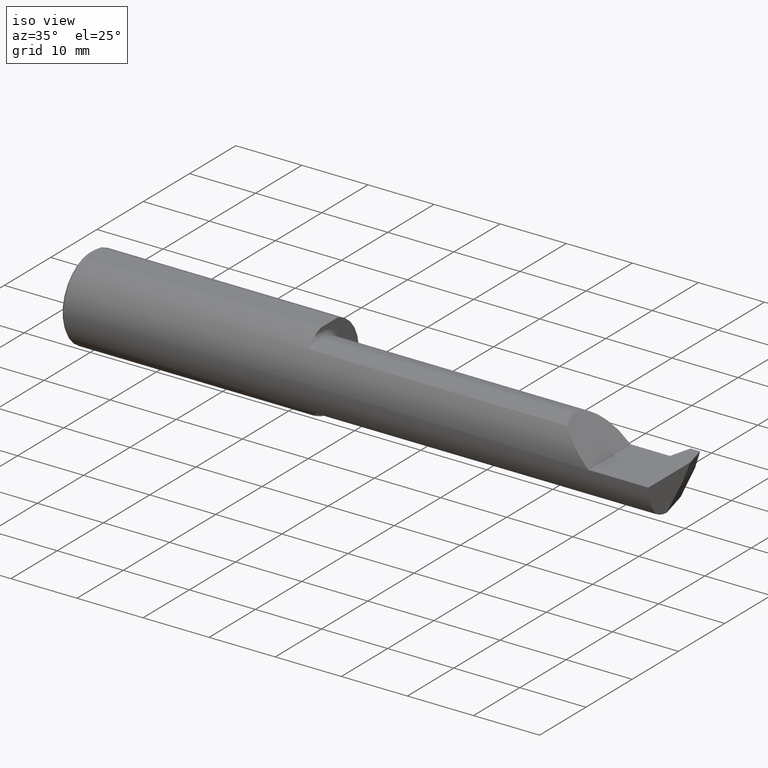
[diagram: clean part render]
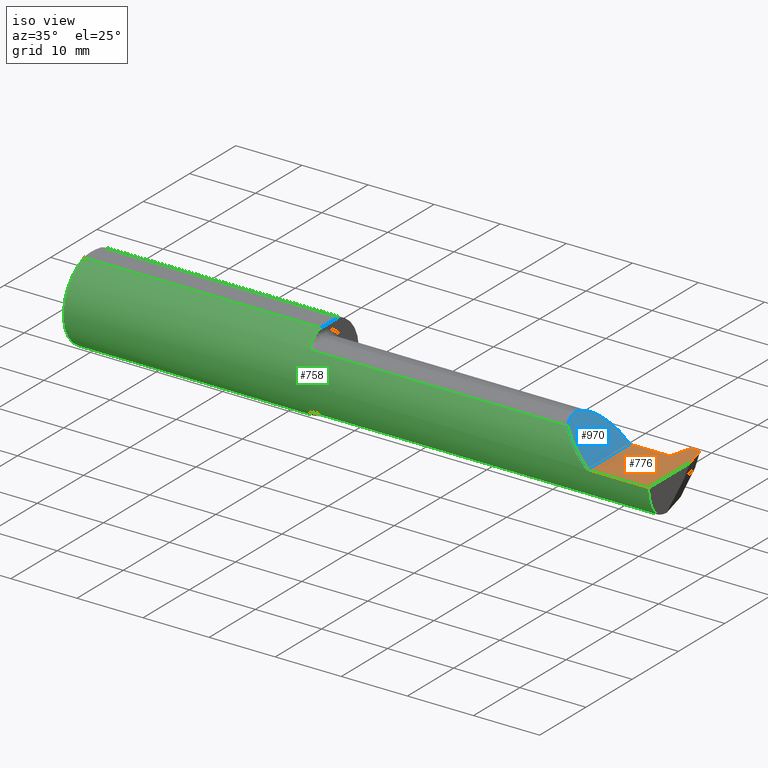
[diagram: same view with three faces highlighted in distinct colors, each labeled with its STEP entity id]
A machine part, iso view with three faces highlighted in distinct colors.
Their STEP definitions:

[orange] entity #776 — the highlighted planar face has unit normal (-0, 0, -1).
#16 = DIRECTION ( 'NONE',  ( 1.000000000000000000, -8.537024980200913523E-16, -0.000000000000000000 ) ) ;
#35 = DIRECTION ( 'NONE',  ( -0.000000000000000000, 1.000000000000000000, -0.000000000000000000 ) ) ;
#36 = CARTESIAN_POINT ( 'NONE',  ( 3.500000000000000000, -0.2498499999999999055, -6.123031769111886291E-17 ) ) ;
#40 = LINE ( 'NONE', #815, #230 ) ;
#60 = VERTEX_POINT ( 'NONE', #695 ) ;
#89 = LINE ( 'NONE', #620, #351 ) ;
#96 = DIRECTION ( 'NONE',  ( 0.2503800040544125749, -0.9681476403781151818, 0.000000000000000000 ) ) ;
#101 = VERTEX_POINT ( 'NONE', #236 ) ;
#131 = EDGE_LOOP ( 'NONE', ( #871, #218, #277, #349, #896, #752, #512, #810 ) ) ;
#134 = VECTOR ( 'NONE', #789, 39.37007874015748143 ) ;
#136 = VERTEX_POINT ( 'NONE', #36 ) ;
#154 = LINE ( 'NONE', #892, #310 ) ;
#175 = VERTEX_POINT ( 'NONE', #718 ) ;
#178 = EDGE_CURVE ( 'NONE', #786, #814, #794, .T. ) ;
#209 = CARTESIAN_POINT ( 'NONE',  ( 3.139999999999999680, 0.2999999999999999889, -6.123031769111886291E-17 ) ) ;
#218 = ORIENTED_EDGE ( 'NONE', *, *, #868, .F. ) ;
#230 = VECTOR ( 'NONE', #291, 39.37007874015748143 ) ;
#236 = CARTESIAN_POINT ( 'NONE',  ( 3.376000360214735707, 0.1101499999999999563, 0.000000000000000000 ) ) ;
#239 = CARTESIAN_POINT ( 'NONE',  ( 3.409103411012277540, 0.2381499999999572847, -6.123031769111886291E-17 ) ) ;
#256 = CARTESIAN_POINT ( 'NONE',  ( 3.500000000000000000, 0.2999999999999999889, -6.123031769111886291E-17 ) ) ;
#275 = VECTOR ( 'NONE', #16, 39.37007874015748143 ) ;
#277 = ORIENTED_EDGE ( 'NONE', *, *, #422, .F. ) ;
#285 = DIRECTION ( 'NONE',  ( 1.000000000000000000, 0.000000000000000000, 0.000000000000000000 ) ) ;
#291 = DIRECTION ( 'NONE',  ( -1.000000000000000000, -0.000000000000000000, -0.000000000000000000 ) ) ;
#310 = VECTOR ( 'NONE', #285, 39.37007874015748143 ) ;
#313 = AXIS2_PLACEMENT_3D ( 'NONE', #209, #960, #362 ) ;
#317 = EDGE_CURVE ( 'NONE', #175, #343, #154, .T. ) ;
#343 = VERTEX_POINT ( 'NONE', #979 ) ;
#349 = ORIENTED_EDGE ( 'NONE', *, *, #317, .F. ) ;
#351 = VECTOR ( 'NONE', #478, 39.37007874015748143 ) ;
#362 = DIRECTION ( 'NONE',  ( -1.000000000000000000, 0.000000000000000000, 0.000000000000000000 ) ) ;
#368 = VECTOR ( 'NONE', #96, 39.37007874015748854 ) ;
#389 = CARTESIAN_POINT ( 'NONE',  ( 3.139999999999999680, -0.2498499999999999610, -6.123031769111885058E-17 ) ) ;
#390 = EDGE_CURVE ( 'NONE', #136, #817, #40, .T. ) ;
#421 = VECTOR ( 'NONE', #35, 39.37007874015748143 ) ;
#422 = EDGE_CURVE ( 'NONE', #343, #101, #624, .T. ) ;
#478 = DIRECTION ( 'NONE',  ( 0.2503800040544344463, 0.9681476403781096307, -0.000000000000000000 ) ) ;
#497 = EDGE_CURVE ( 'NONE', #786, #60, #836, .T. ) ;
#512 = ORIENTED_EDGE ( 'NONE', *, *, #946, .T. ) ;
#522 = PLANE ( 'NONE',  #313 ) ;
#547 = VECTOR ( 'NONE', #627, 39.37007874015748143 ) ;
#568 = LINE ( 'NONE', #865, #421 ) ;
#620 = CARTESIAN_POINT ( 'NONE',  ( 3.412206822024559383, 0.2501499999999999835, 0.000000000000000000 ) ) ;
#624 = LINE ( 'NONE', #932, #275 ) ;
#627 = DIRECTION ( 'NONE',  ( -1.000000000000000000, 4.626059459033357945E-14, 0.000000000000000000 ) ) ;
#663 = EDGE_CURVE ( 'NONE', #817, #175, #568, .T. ) ;
#695 = CARTESIAN_POINT ( 'NONE',  ( 3.500000000000000000, 0.1070816154887281602, 0.000000000000000000 ) ) ;
#709 = LINE ( 'NONE', #256, #134 ) ;
#713 = CARTESIAN_POINT ( 'NONE',  ( 3.139999999999997016, 0.2381499999999697470, -6.123031769111886291E-17 ) ) ;
#718 = CARTESIAN_POINT ( 'NONE',  ( 3.139999999999999680, 0.1101499999999999563, -6.123031769111885058E-17 ) ) ;
#732 = CARTESIAN_POINT ( 'NONE',  ( 3.466103411012281921, 0.2381499999999546757, 0.000000000000000000 ) ) ;
#752 = ORIENTED_EDGE ( 'NONE', *, *, #390, .F. ) ;
#776 = ADVANCED_FACE ( 'NONE', ( #888 ), #522, .F. ) ;
#778 = CARTESIAN_POINT ( 'NONE',  ( 3.462999999999999634, 0.2501499999999999835, 0.000000000000000000 ) ) ;
#786 = VERTEX_POINT ( 'NONE', #732 ) ;
#789 = DIRECTION ( 'NONE',  ( -0.000000000000000000, 1.000000000000000000, -0.000000000000000000 ) ) ;
#794 = LINE ( 'NONE', #713, #547 ) ;
#810 = ORIENTED_EDGE ( 'NONE', *, *, #497, .F. ) ;
#814 = VERTEX_POINT ( 'NONE', #239 ) ;
#815 = CARTESIAN_POINT ( 'NONE',  ( 3.500000000000000000, -0.2498499999999999888, -6.123031769111886291E-17 ) ) ;
#817 = VERTEX_POINT ( 'NONE', #389 ) ;
#836 = LINE ( 'NONE', #778, #368 ) ;
#865 = CARTESIAN_POINT ( 'NONE',  ( 3.139999999999999680, 0.2999999999999999889, -6.123031769111886291E-17 ) ) ;
#868 = EDGE_CURVE ( 'NONE', #101, #814, #89, .T. ) ;
#871 = ORIENTED_EDGE ( 'NONE', *, *, #178, .T. ) ;
#888 = FACE_OUTER_BOUND ( 'NONE', #131, .T. ) ;
#892 = CARTESIAN_POINT ( 'NONE',  ( 1.424999999999999600, 0.1101499999999999840, -6.123031769111886291E-17 ) ) ;
#896 = ORIENTED_EDGE ( 'NONE', *, *, #663, .F. ) ;
#932 = CARTESIAN_POINT ( 'NONE',  ( 3.376000360214735707, 0.1101499999999999563, 0.000000000000000000 ) ) ;
#946 = EDGE_CURVE ( 'NONE', #136, #60, #709, .T. ) ;
#960 = DIRECTION ( 'NONE',  ( -0.000000000000000000, 0.000000000000000000, -1.000000000000000000 ) ) ;
#979 = CARTESIAN_POINT ( 'NONE',  ( 3.356000360214735689, 0.1101499999999999702, 0.000000000000000000 ) ) ;

[blue] entity #970 — the highlighted planar face has unit normal (-0.7071, 0, -0.7071).
#29 = CARTESIAN_POINT ( 'NONE',  ( 2.974762187678657632, -0.1862082793164402394, 0.1665878123213416218 ) ) ;
#43 = ORIENTED_EDGE ( 'NONE', *, *, #467, .F. ) ;
#72 =( BOUNDED_CURVE ( )  B_SPLINE_CURVE ( 3, ( #499, #929, #182, #29 ),
 .UNSPECIFIED., .F., .T. ) 
 B_SPLINE_CURVE_WITH_KNOTS ( ( 4, 4 ),
 ( 0.000000000000000000, 0.5466004890170823582 ),
 .UNSPECIFIED. ) 
 CURVE ( )  GEOMETRIC_REPRESENTATION_ITEM ( )  RATIONAL_B_SPLINE_CURVE ( ( 1.000000000000000000, 0.9752569136661357607, 0.9752569136661357607, 1.000000000000000000 ) ) 
 REPRESENTATION_ITEM ( '' )  );
#92 = LINE ( 'NONE', #708, #811 ) ;
#105 = CARTESIAN_POINT ( 'NONE',  ( 3.139999999999999680, 0.1101453268670816166, 0.001349999999998470696 ) ) ;
#111 = CARTESIAN_POINT ( 'NONE',  ( 2.946349999999998914, -0.08485000000000002263, 0.1950000000000000067 ) ) ;
#155 = CARTESIAN_POINT ( 'NONE',  ( 2.974762187678657632, -0.1862082793164402394, 0.1665878123213416218 ) ) ;
#159 = DIRECTION ( 'NONE',  ( 0.000000000000000000, -1.000000000000000000, 0.000000000000000000 ) ) ;
#182 = CARTESIAN_POINT ( 'NONE',  ( 2.956061009574508791, -0.1554718819623024939, 0.1852889904254893805 ) ) ;
#189 = FACE_OUTER_BOUND ( 'NONE', #288, .T. ) ;
#197 = EDGE_CURVE ( 'NONE', #953, #857, #72, .T. ) ;
#217 = CARTESIAN_POINT ( 'NONE',  ( 2.946349999999999802, 0.02875230614401374021, 0.1949999999999999789 ) ) ;
#226 = DIRECTION ( 'NONE',  ( -0.7071067811865491270, 0.000000000000000000, -0.7071067811865459074 ) ) ;
#262 = AXIS2_PLACEMENT_3D ( 'NONE', #585, #226, #453 ) ;
#288 = EDGE_LOOP ( 'NONE', ( #43, #852, #755, #456 ) ) ;
#299 = CARTESIAN_POINT ( 'NONE',  ( 2.946349999999998914, -0.08485000000000002263, 0.1950000000000000067 ) ) ;
#353 = PLANE ( 'NONE',  #262 ) ;
#453 = DIRECTION ( 'NONE',  ( -0.7071067811865459074, 0.000000000000000000, 0.7071067811865491270 ) ) ;
#456 = ORIENTED_EDGE ( 'NONE', *, *, #880, .F. ) ;
#466 = CARTESIAN_POINT ( 'NONE',  ( 3.139999999999999680, -0.2498463527850666721, 0.001349999999998470696 ) ) ;
#467 = EDGE_CURVE ( 'NONE', #921, #491, #92, .T. ) ;
#491 = VERTEX_POINT ( 'NONE', #466 ) ;
#499 = CARTESIAN_POINT ( 'NONE',  ( 2.946349999999998914, -0.08485000000000002263, 0.1950000000000000067 ) ) ;
#532 = CARTESIAN_POINT ( 'NONE',  ( 3.078309325945296493, -0.2495130182814991326, 0.06304067405470241414 ) ) ;
#585 = CARTESIAN_POINT ( 'NONE',  ( 2.902499999999999414, 0.1000000000000000056, 0.2388499999999999790 ) ) ;
#626 = CARTESIAN_POINT ( 'NONE',  ( 3.139999999999999680, -0.2498463527850666721, 0.001349999999998470696 ) ) ;
#679 = CARTESIAN_POINT ( 'NONE',  ( 3.139999999999999680, 0.1101453268670816166, 0.001349999999998470696 ) ) ;
#688 = CARTESIAN_POINT ( 'NONE',  ( 3.020739702009154648, -0.2273412168872476491, 0.1206102979908447587 ) ) ;
#708 = CARTESIAN_POINT ( 'NONE',  ( 3.139999999999999680, 0.2999999999999999889, 0.001349999999998470696 ) ) ;
#710 =( BOUNDED_CURVE ( )  B_SPLINE_CURVE ( 3, ( #626, #532, #688, #155 ),
 .UNSPECIFIED., .F., .F. ) 
 B_SPLINE_CURVE_WITH_KNOTS ( ( 4, 4 ),
 ( 4.717792248621492490, 5.442230189998086942 ),
 .UNSPECIFIED. ) 
 CURVE ( )  GEOMETRIC_REPRESENTATION_ITEM ( )  RATIONAL_B_SPLINE_CURVE ( ( 1.000000000000000000, 0.9567418893490833298, 0.9567418893490833298, 1.000000000000000000 ) ) 
 REPRESENTATION_ITEM ( '' )  );
#716 = EDGE_CURVE ( 'NONE', #921, #953, #784, .T. ) ;
#755 = ORIENTED_EDGE ( 'NONE', *, *, #197, .T. ) ;
#784 =( BOUNDED_CURVE ( )  B_SPLINE_CURVE ( 3, ( #679, #882, #217, #299 ),
 .UNSPECIFIED., .F., .F. ) 
 B_SPLINE_CURVE_WITH_KNOTS ( ( 4, 4 ),
 ( 4.719312112611637744, 6.283185307179586232 ),
 .UNSPECIFIED. ) 
 CURVE ( )  GEOMETRIC_REPRESENTATION_ITEM ( )  RATIONAL_B_SPLINE_CURVE ( ( 1.000000000000000000, 0.8063668244950925601, 0.8063668244950925601, 1.000000000000000000 ) ) 
 REPRESENTATION_ITEM ( '' )  );
#811 = VECTOR ( 'NONE', #159, 39.37007874015748143 ) ;
#831 = CARTESIAN_POINT ( 'NONE',  ( 2.974762187678657632, -0.1862082793164402394, 0.1665878123213416218 ) ) ;
#852 = ORIENTED_EDGE ( 'NONE', *, *, #716, .T. ) ;
#857 = VERTEX_POINT ( 'NONE', #831 ) ;
#880 = EDGE_CURVE ( 'NONE', #491, #857, #710, .T. ) ;
#882 = CARTESIAN_POINT ( 'NONE',  ( 3.026400416310737640, 0.1093588493630084646, 0.1149495836892613088 ) ) ;
#921 = VERTEX_POINT ( 'NONE', #105 ) ;
#929 = CARTESIAN_POINT ( 'NONE',  ( 2.946349999999999358, -0.1208286073214972500, 0.1949999999999999234 ) ) ;
#953 = VERTEX_POINT ( 'NONE', #111 ) ;
#970 = ADVANCED_FACE ( 'NONE', ( #189 ), #353, .F. ) ;

[green] entity #758 — the highlighted cylindrical surface (partial cylindrical patch) has radius 6.3462 mm, axis along (-1, -0, -0).
#3 = AXIS2_PLACEMENT_3D ( 'NONE', #116, #407, #283 ) ;
#21 = EDGE_CURVE ( 'NONE', #142, #130, #104, .T. ) ;
#23 = ORIENTED_EDGE ( 'NONE', *, *, #580, .T. ) ;
#28 = DIRECTION ( 'NONE',  ( 1.000000000000000000, 0.000000000000000000, 0.000000000000000000 ) ) ;
#30 = EDGE_CURVE ( 'NONE', #759, #302, #577, .T. ) ;
#36 = CARTESIAN_POINT ( 'NONE',  ( 3.500000000000000000, -0.2498499999999999055, -6.123031769111886291E-17 ) ) ;
#37 = EDGE_CURVE ( 'NONE', #662, #560, #611, .T. ) ;
#40 = LINE ( 'NONE', #815, #230 ) ;
#61 = CARTESIAN_POINT ( 'NONE',  ( 1.424999999999999600, -0.1376885313855324422, -0.2089959966382204382 ) ) ;
#77 = EDGE_CURVE ( 'NONE', #281, #801, #982, .T. ) ;
#82 = EDGE_CURVE ( 'NONE', #136, #281, #592, .T. ) ;
#85 = EDGE_LOOP ( 'NONE', ( #858, #792, #594, #864, #109, #658, #396, #486, #23, #588, #269, #91, #500, #237 ) ) ;
#91 = ORIENTED_EDGE ( 'NONE', *, *, #641, .T. ) ;
#94 = CARTESIAN_POINT ( 'NONE',  ( 0.01500000000000024925, 0.000000000000000000, 0.000000000000000000 ) ) ;
#104 = CIRCLE ( 'NONE', #469, 0.2498499999999999888 ) ;
#109 = ORIENTED_EDGE ( 'NONE', *, *, #880, .T. ) ;
#116 = CARTESIAN_POINT ( 'NONE',  ( 0.01500000000000024925, 0.000000000000000000, 0.000000000000000000 ) ) ;
#118 = CARTESIAN_POINT ( 'NONE',  ( 1.437118484253500972, -0.1780926133871663097, 0.1752686114729513633 ) ) ;
#119 = CARTESIAN_POINT ( 'NONE',  ( 2.399999999999999911, -0.1862082793164407946, 0.1665878123213411499 ) ) ;
#126 = CARTESIAN_POINT ( 'NONE',  ( 1.442133466839169431, -0.1833506539713361250, 0.1697341124089706277 ) ) ;
#128 = CARTESIAN_POINT ( 'NONE',  ( 1.424999999999999600, -0.1250709781968178946, -0.2162921009026707309 ) ) ;
#130 = VERTEX_POINT ( 'NONE', #570 ) ;
#133 = AXIS2_PLACEMENT_3D ( 'NONE', #901, #535, #529 ) ;
#136 = VERTEX_POINT ( 'NONE', #36 ) ;
#138 = CARTESIAN_POINT ( 'NONE',  ( 3.500000000000000000, 0.000000000000000000, 0.000000000000000000 ) ) ;
#142 = VERTEX_POINT ( 'NONE', #334 ) ;
#155 = CARTESIAN_POINT ( 'NONE',  ( 2.974762187678657632, -0.1862082793164402394, 0.1665878123213416218 ) ) ;
#158 = EDGE_CURVE ( 'NONE', #331, #857, #638, .T. ) ;
#161 = DIRECTION ( 'NONE',  ( 1.000000000000000000, 0.000000000000000000, 0.000000000000000000 ) ) ;
#163 = CARTESIAN_POINT ( 'NONE',  ( 1.424999999999999600, 0.000000000000000000, 0.000000000000000000 ) ) ;
#176 = VERTEX_POINT ( 'NONE', #572 ) ;
#186 = CARTESIAN_POINT ( 'NONE',  ( 3.500000000000000000, 0.07331916529803116089, 0.2388499999999999790 ) ) ;
#190 = LINE ( 'NONE', #950, #628 ) ;
#216 = CARTESIAN_POINT ( 'NONE',  ( 1.443416617075089947, -0.1842851675631635711, -0.1687160800144226758 ) ) ;
#230 = VECTOR ( 'NONE', #291, 39.37007874015748143 ) ;
#237 = ORIENTED_EDGE ( 'NONE', *, *, #322, .T. ) ;
#241 = DIRECTION ( 'NONE',  ( -1.000000000000000000, -0.000000000000000000, -0.000000000000000000 ) ) ;
#257 = CARTESIAN_POINT ( 'NONE',  ( 1.424999999999999600, -0.1250709781968178946, 0.2162921009026707309 ) ) ;
#268 = DIRECTION ( 'NONE',  ( 1.000000000000000000, 0.000000000000000000, 0.000000000000000000 ) ) ;
#269 = ORIENTED_EDGE ( 'NONE', *, *, #21, .T. ) ;
#271 = CARTESIAN_POINT ( 'NONE',  ( 1.448136090905396189, -0.1862082793164408778, 0.1665878123213412332 ) ) ;
#276 = CARTESIAN_POINT ( 'NONE',  ( 1.449999999999999512, -0.1862082793164407946, 0.1665878123213411499 ) ) ;
#279 = CARTESIAN_POINT ( 'NONE',  ( 1.449999999999999512, -0.1862082793164407946, -0.1665878123213411499 ) ) ;
#281 = VERTEX_POINT ( 'NONE', #409 ) ;
#283 = DIRECTION ( 'NONE',  ( 0.000000000000000000, 0.000000000000000000, -1.000000000000000000 ) ) ;
#291 = DIRECTION ( 'NONE',  ( -1.000000000000000000, -0.000000000000000000, -0.000000000000000000 ) ) ;
#302 = VERTEX_POINT ( 'NONE', #829 ) ;
#306 = DIRECTION ( 'NONE',  ( 1.000000000000000000, -0.000000000000000000, -0.000000000000000000 ) ) ;
#308 = CARTESIAN_POINT ( 'NONE',  ( 1.437135037345900868, -0.1781181496382315266, -0.1752430622336075550 ) ) ;
#311 = CARTESIAN_POINT ( 'NONE',  ( 2.399999999999999911, -0.1862082793164407946, -0.1665878123213411499 ) ) ;
#322 = EDGE_CURVE ( 'NONE', #759, #801, #639, .T. ) ;
#331 = VERTEX_POINT ( 'NONE', #948 ) ;
#334 = CARTESIAN_POINT ( 'NONE',  ( 0.01500000000000024925, 0.000000000000000000, -0.2498499999999999888 ) ) ;
#339 = VECTOR ( 'NONE', #268, 39.37007874015748143 ) ;
#340 = AXIS2_PLACEMENT_3D ( 'NONE', #692, #914, #540 ) ;
#345 = CARTESIAN_POINT ( 'NONE',  ( 1.426293471060600559, -0.1495312910450007360, 0.2006610765018841391 ) ) ;
#361 = CARTESIAN_POINT ( 'NONE',  ( 1.442154182526137918, -0.1833665275214916013, -0.1697169404947844740 ) ) ;
#377 = CARTESIAN_POINT ( 'NONE',  ( 1.438813695058259734, -0.1803944576976549696, -0.1728909059399327819 ) ) ;
#387 = CIRCLE ( 'NONE', #3, 0.2498499999999999888 ) ;
#389 = CARTESIAN_POINT ( 'NONE',  ( 3.139999999999999680, -0.2498499999999999610, -6.123031769111885058E-17 ) ) ;
#390 = EDGE_CURVE ( 'NONE', #136, #817, #40, .T. ) ;
#396 = ORIENTED_EDGE ( 'NONE', *, *, #553, .T. ) ;
#407 = DIRECTION ( 'NONE',  ( 1.000000000000000000, -0.000000000000000000, -0.000000000000000000 ) ) ;
#409 = CARTESIAN_POINT ( 'NONE',  ( 3.500000000000000000, -0.1862082793164407113, -0.1665878123213411777 ) ) ;
#424 = CARTESIAN_POINT ( 'NONE',  ( 1.430828878631585033, -0.1657311752962012386, -0.1871053287252795183 ) ) ;
#451 = FACE_OUTER_BOUND ( 'NONE', #85, .T. ) ;
#454 = DIRECTION ( 'NONE',  ( 0.000000000000000000, 0.000000000000000000, -1.000000000000000000 ) ) ;
#455 = B_SPLINE_CURVE_WITH_KNOTS ( 'NONE', 3,
 ( #276, #271, #933, #802, #126, #782, #118, #579, #646, #345, #874, #489 ),
 .UNSPECIFIED., .F., .F.,
 ( 4, 2, 2, 2, 2, 4 ),
 ( 0.000000000000000000, 0.0001393948641635524169, 0.0002787897283271048338, 0.0005575794566542082581, 0.001115158913308416516, 0.002230317826616836068 ),
 .UNSPECIFIED. ) ;
#464 = DIRECTION ( 'NONE',  ( 0.000000000000000000, 0.000000000000000000, -1.000000000000000000 ) ) ;
#466 = CARTESIAN_POINT ( 'NONE',  ( 3.139999999999999680, -0.2498463527850666721, 0.001349999999998470696 ) ) ;
#469 = AXIS2_PLACEMENT_3D ( 'NONE', #94, #306, #454 ) ;
#486 = ORIENTED_EDGE ( 'NONE', *, *, #37, .F. ) ;
#489 = CARTESIAN_POINT ( 'NONE',  ( 1.424999999999999600, -0.1250709781968178946, 0.2162921009026707309 ) ) ;
#491 = VERTEX_POINT ( 'NONE', #466 ) ;
#496 = EDGE_CURVE ( 'NONE', #817, #491, #876, .T. ) ;
#500 = ORIENTED_EDGE ( 'NONE', *, *, #30, .F. ) ;
#521 = CARTESIAN_POINT ( 'NONE',  ( 1.449999999999999512, -0.1862082793164407946, -0.1665878123213411499 ) ) ;
#529 = DIRECTION ( 'NONE',  ( 0.000000000000000000, 0.000000000000000000, -1.000000000000000000 ) ) ;
#532 = CARTESIAN_POINT ( 'NONE',  ( 3.078309325945296493, -0.2495130182814991326, 0.06304067405470241414 ) ) ;
#535 = DIRECTION ( 'NONE',  ( 1.000000000000000000, 0.000000000000000000, 0.000000000000000000 ) ) ;
#538 = DIRECTION ( 'NONE',  ( 0.000000000000000000, 0.000000000000000000, -1.000000000000000000 ) ) ;
#540 = DIRECTION ( 'NONE',  ( 0.000000000000000000, 0.000000000000000000, 1.000000000000000000 ) ) ;
#550 = VECTOR ( 'NONE', #28, 39.37007874015748143 ) ;
#553 = EDGE_CURVE ( 'NONE', #331, #560, #455, .T. ) ;
#560 = VERTEX_POINT ( 'NONE', #257 ) ;
#570 = CARTESIAN_POINT ( 'NONE',  ( 0.01500000000000024925, 0.07331916529803100824, 0.2388500000000000345 ) ) ;
#572 = CARTESIAN_POINT ( 'NONE',  ( 0.01500000000000021108, -0.07331916529803102212, 0.2388499999999999790 ) ) ;
#574 = DIRECTION ( 'NONE',  ( -1.000000000000000000, -0.000000000000000000, -0.000000000000000000 ) ) ;
#577 = CIRCLE ( 'NONE', #922, 0.2498499999999999888 ) ;
#579 = CARTESIAN_POINT ( 'NONE',  ( 1.432805179170605125, -0.1710060601368942890, 0.1822803344833587302 ) ) ;
#580 = EDGE_CURVE ( 'NONE', #662, #176, #190, .T. ) ;
#588 = ORIENTED_EDGE ( 'NONE', *, *, #942, .T. ) ;
#589 = CARTESIAN_POINT ( 'NONE',  ( 1.426272908852842969, -0.1494261110292506023, -0.2007428102137028270 ) ) ;
#590 = CYLINDRICAL_SURFACE ( 'NONE', #938, 0.2498499999999999888 ) ;
#592 = CIRCLE ( 'NONE', #859, 0.2498499999999999888 ) ;
#594 = ORIENTED_EDGE ( 'NONE', *, *, #390, .T. ) ;
#596 = CARTESIAN_POINT ( 'NONE',  ( 1.448145221810429151, -0.1862082793164407113, -0.1665878123213412054 ) ) ;
#611 = CIRCLE ( 'NONE', #133, 0.2498499999999999888 ) ;
#616 = CARTESIAN_POINT ( 'NONE',  ( 3.500000000000000000, 0.000000000000000000, 0.000000000000000000 ) ) ;
#626 = CARTESIAN_POINT ( 'NONE',  ( 3.139999999999999680, -0.2498463527850666721, 0.001349999999998470696 ) ) ;
#628 = VECTOR ( 'NONE', #574, 39.37007874015748143 ) ;
#637 = CARTESIAN_POINT ( 'NONE',  ( 1.424999999999999600, -0.07331916529803114702, 0.2388499999999999790 ) ) ;
#638 = LINE ( 'NONE', #119, #339 ) ;
#639 = B_SPLINE_CURVE_WITH_KNOTS ( 'NONE', 3,
 ( #822, #61, #589, #424, #650, #308, #377, #361, #216, #665, #596, #521 ),
 .UNSPECIFIED., .F., .F.,
 ( 4, 2, 2, 2, 2, 4 ),
 ( 0.000000000000000000, 0.001097037258504888427, 0.001645555887757334159, 0.001919815202383553772, 0.002056944859696663037, 0.002194074517009772084 ),
 .UNSPECIFIED. ) ;
#641 = EDGE_CURVE ( 'NONE', #130, #302, #717, .T. ) ;
#646 = CARTESIAN_POINT ( 'NONE',  ( 1.430845932937570675, -0.1657762713748383576, 0.1870644631675826564 ) ) ;
#650 = CARTESIAN_POINT ( 'NONE',  ( 1.432791519316736872, -0.1709869259022376575, -0.1822998300512940206 ) ) ;
#658 = ORIENTED_EDGE ( 'NONE', *, *, #158, .F. ) ;
#660 = DIRECTION ( 'NONE',  ( -1.000000000000000000, -0.000000000000000000, -0.000000000000000000 ) ) ;
#662 = VERTEX_POINT ( 'NONE', #637 ) ;
#665 = CARTESIAN_POINT ( 'NONE',  ( 1.446370180837896369, -0.1857053627698156129, -0.1671515984899561991 ) ) ;
#688 = CARTESIAN_POINT ( 'NONE',  ( 3.020739702009154648, -0.2273412168872476491, 0.1206102979908447587 ) ) ;
#692 = CARTESIAN_POINT ( 'NONE',  ( 3.139999999999999680, 0.000000000000000000, 0.000000000000000000 ) ) ;
#710 =( BOUNDED_CURVE ( )  B_SPLINE_CURVE ( 3, ( #626, #532, #688, #155 ),
 .UNSPECIFIED., .F., .F. ) 
 B_SPLINE_CURVE_WITH_KNOTS ( ( 4, 4 ),
 ( 4.717792248621492490, 5.442230189998086942 ),
 .UNSPECIFIED. ) 
 CURVE ( )  GEOMETRIC_REPRESENTATION_ITEM ( )  RATIONAL_B_SPLINE_CURVE ( ( 1.000000000000000000, 0.9567418893490833298, 0.9567418893490833298, 1.000000000000000000 ) ) 
 REPRESENTATION_ITEM ( '' )  );
#717 = LINE ( 'NONE', #186, #550 ) ;
#757 = DIRECTION ( 'NONE',  ( 0.000000000000000000, 0.000000000000000000, 1.000000000000000000 ) ) ;
#758 = ADVANCED_FACE ( 'NONE', ( #451 ), #590, .T. ) ;
#759 = VERTEX_POINT ( 'NONE', #128 ) ;
#782 = CARTESIAN_POINT ( 'NONE',  ( 1.438795016024909446, -0.1803726541953342699, 0.1729137444693446546 ) ) ;
#792 = ORIENTED_EDGE ( 'NONE', *, *, #82, .F. ) ;
#801 = VERTEX_POINT ( 'NONE', #279 ) ;
#802 = CARTESIAN_POINT ( 'NONE',  ( 1.443393762476562037, -0.1842731779358249833, 0.1687292568213745736 ) ) ;
#815 = CARTESIAN_POINT ( 'NONE',  ( 3.500000000000000000, -0.2498499999999999888, -6.123031769111886291E-17 ) ) ;
#817 = VERTEX_POINT ( 'NONE', #389 ) ;
#822 = CARTESIAN_POINT ( 'NONE',  ( 1.424999999999999600, -0.1250709781968178946, -0.2162921009026707309 ) ) ;
#829 = CARTESIAN_POINT ( 'NONE',  ( 1.424999999999999600, 0.07331916529803114702, 0.2388499999999999790 ) ) ;
#831 = CARTESIAN_POINT ( 'NONE',  ( 2.974762187678657632, -0.1862082793164402394, 0.1665878123213416218 ) ) ;
#843 = VECTOR ( 'NONE', #241, 39.37007874015748143 ) ;
#857 = VERTEX_POINT ( 'NONE', #831 ) ;
#858 = ORIENTED_EDGE ( 'NONE', *, *, #77, .F. ) ;
#859 = AXIS2_PLACEMENT_3D ( 'NONE', #616, #161, #464 ) ;
#864 = ORIENTED_EDGE ( 'NONE', *, *, #496, .T. ) ;
#874 = CARTESIAN_POINT ( 'NONE',  ( 1.424999999999999600, -0.1376662443218121257, 0.2090088841401171182 ) ) ;
#876 = CIRCLE ( 'NONE', #340, 0.2498499999999999888 ) ;
#880 = EDGE_CURVE ( 'NONE', #491, #857, #710, .T. ) ;
#901 = CARTESIAN_POINT ( 'NONE',  ( 1.424999999999999600, 0.000000000000000000, 0.000000000000000000 ) ) ;
#912 = DIRECTION ( 'NONE',  ( 1.000000000000000000, 0.000000000000000000, 0.000000000000000000 ) ) ;
#914 = DIRECTION ( 'NONE',  ( -1.000000000000000000, -0.000000000000000000, -0.000000000000000000 ) ) ;
#922 = AXIS2_PLACEMENT_3D ( 'NONE', #163, #912, #538 ) ;
#933 = CARTESIAN_POINT ( 'NONE',  ( 1.446379501438356474, -0.1857108401697049882, 0.1671455953877453715 ) ) ;
#938 = AXIS2_PLACEMENT_3D ( 'NONE', #138, #660, #757 ) ;
#942 = EDGE_CURVE ( 'NONE', #176, #142, #387, .T. ) ;
#948 = CARTESIAN_POINT ( 'NONE',  ( 1.449999999999999512, -0.1862082793164407946, 0.1665878123213411499 ) ) ;
#950 = CARTESIAN_POINT ( 'NONE',  ( 3.500000000000000000, -0.07331916529803116089, 0.2388499999999999790 ) ) ;
#982 = LINE ( 'NONE', #311, #843 ) ;